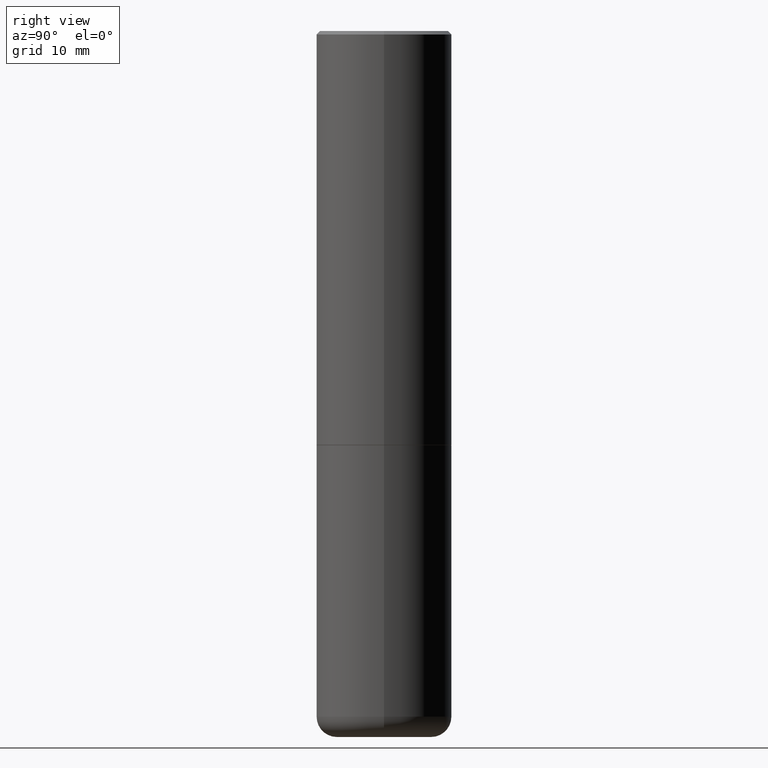
[diagram: clean part render]
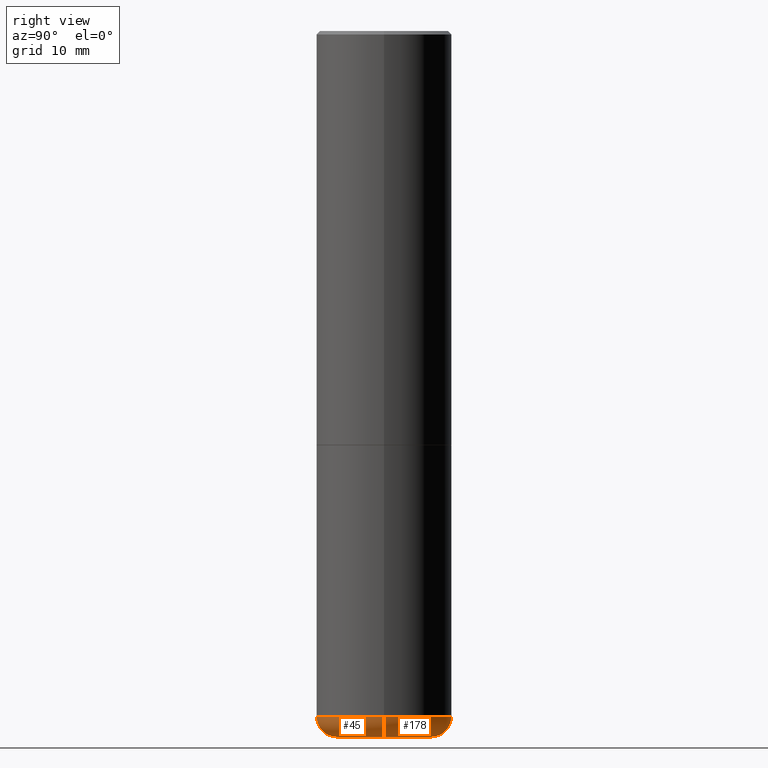
[diagram: same view with one multi-face feature highlighted, each face labeled with its STEP entity id]
A machine part, right view. The highlighted faces form ONE feature: a constant-radius fillet chain: 2 tangent blend faces with common blend radius 2.9997 mm. The faces share edges in the B-rep.
Their STEP definitions:
[1] entity #178 (Torus):
#9 = ORIENTED_EDGE ( 'NONE', *, *, #159, .F. ) ;
#28 = ORIENTED_EDGE ( 'NONE', *, *, #130, .T. ) ;
#40 = DIRECTION ( 'NONE',  ( -2.445468806185136597E-29, 3.491481338843145583E-15, 1.000000000000000000 ) ) ;
#44 = CARTESIAN_POINT ( 'NONE',  ( -0.2756000000000000116, -1.192527061602104919E-14, -3.976400000000000379 ) ) ;
#78 = FACE_OUTER_BOUND ( 'NONE', #345, .T. ) ;
#82 = VERTEX_POINT ( 'NONE', #390 ) ;
#90 = ORIENTED_EDGE ( 'NONE', *, *, #119, .F. ) ;
#92 = DIRECTION ( 'NONE',  ( -2.445468806185136597E-29, 3.491481338843145583E-15, 1.000000000000000000 ) ) ;
#117 = AXIS2_PLACEMENT_3D ( 'NONE', #330, #267, #143 ) ;
#119 = EDGE_CURVE ( 'NONE', #315, #274, #176, .T. ) ;
#120 = VERTEX_POINT ( 'NONE', #133 ) ;
#130 = EDGE_CURVE ( 'NONE', #82, #120, #350, .T. ) ;
#133 = CARTESIAN_POINT ( 'NONE',  ( -0.2756000000000000116, -1.171186710361339913E-14, -4.094500000000000028 ) ) ;
#143 = DIRECTION ( 'NONE',  ( 1.000000000000000000, -6.982962677686273021E-15, 0.000000000000000000 ) ) ;
#159 = EDGE_CURVE ( 'NONE', #82, #315, #184, .T. ) ;
#162 = TOROIDAL_SURFACE ( 'NONE', #212, 0.2756000000000000116, 0.1180999999999997468 ) ;
#176 = CIRCLE ( 'NONE', #245, 0.3937000000000000499 ) ;
#178 = ADVANCED_FACE ( 'NONE', ( #78 ), #162, .T. ) ;
#180 = DIRECTION ( 'NONE',  ( 7.105427357601001859E-15, 1.000000000000000000, -3.491481338843145583E-15 ) ) ;
#184 = CIRCLE ( 'NONE', #117, 0.1180999999999997191 ) ;
#212 = AXIS2_PLACEMENT_3D ( 'NONE', #214, #40, #334 ) ;
#214 = CARTESIAN_POINT ( 'NONE',  ( 9.724162160914577144E-29, -1.388352639577588421E-14, -3.976400000000000379 ) ) ;
#223 = AXIS2_PLACEMENT_3D ( 'NONE', #329, #92, #374 ) ;
#235 = CARTESIAN_POINT ( 'NONE',  ( 9.724162160914577144E-29, -1.388352639577588421E-14, -3.976400000000000379 ) ) ;
#245 = AXIS2_PLACEMENT_3D ( 'NONE', #235, #393, #366 ) ;
#266 = EDGE_CURVE ( 'NONE', #120, #274, #409, .T. ) ;
#267 = DIRECTION ( 'NONE',  ( -6.982962677686266711E-15, -1.000000000000000000, 3.491481338843145583E-15 ) ) ;
#274 = VERTEX_POINT ( 'NONE', #401 ) ;
#301 = DIRECTION ( 'NONE',  ( -1.000000000000000000, 7.105427357601005014E-15, 0.000000000000000000 ) ) ;
#306 = AXIS2_PLACEMENT_3D ( 'NONE', #44, #180, #301 ) ;
#315 = VERTEX_POINT ( 'NONE', #346 ) ;
#329 = CARTESIAN_POINT ( 'NONE',  ( 1.001297202692504102E-28, -1.429587034189325834E-14, -4.094500000000000028 ) ) ;
#330 = CARTESIAN_POINT ( 'NONE',  ( 0.2756000000000000116, -1.580803090974622074E-14, -3.976400000000000379 ) ) ;
#334 = DIRECTION ( 'NONE',  ( 1.000000000000000000, -6.982962677686268288E-15, 4.883557194083112901E-29 ) ) ;
#345 = EDGE_LOOP ( 'NONE', ( #28, #349, #90, #9 ) ) ;
#346 = CARTESIAN_POINT ( 'NONE',  ( 0.3936999999999998834, -1.663271880198096585E-14, -3.976400000000000379 ) ) ;
#349 = ORIENTED_EDGE ( 'NONE', *, *, #266, .T. ) ;
#350 = CIRCLE ( 'NONE', #223, 0.2756000000000000116 ) ;
#366 = DIRECTION ( 'NONE',  ( 1.000000000000000000, -6.982962677686267499E-15, 0.000000000000000000 ) ) ;
#374 = DIRECTION ( 'NONE',  ( 1.000000000000000000, -6.982962677686265922E-15, 0.000000000000000000 ) ) ;
#390 = CARTESIAN_POINT ( 'NONE',  ( 0.2756000000000000116, -1.622037485586359329E-14, -4.094500000000000028 ) ) ;
#393 = DIRECTION ( 'NONE',  ( -2.445468806185136597E-29, 3.491481338843145583E-15, 1.000000000000000000 ) ) ;
#401 = CARTESIAN_POINT ( 'NONE',  ( -0.3936999999999998834, -1.108611964508837021E-14, -3.976400000000000379 ) ) ;
#409 = CIRCLE ( 'NONE', #306, 0.1180999999999997191 ) ;
[2] entity #45 (Torus):
#1 = DIRECTION ( 'NONE',  ( 1.000000000000000000, -6.982962677686268288E-15, 4.883557194083112901E-29 ) ) ;
#20 = DIRECTION ( 'NONE',  ( 1.000000000000000000, -6.982962677686267499E-15, 0.000000000000000000 ) ) ;
#25 = AXIS2_PLACEMENT_3D ( 'NONE', #125, #410, #20 ) ;
#39 = CARTESIAN_POINT ( 'NONE',  ( 9.724162160914577144E-29, -1.388352639577588421E-14, -3.976400000000000379 ) ) ;
#44 = CARTESIAN_POINT ( 'NONE',  ( -0.2756000000000000116, -1.192527061602104919E-14, -3.976400000000000379 ) ) ;
#45 = ADVANCED_FACE ( 'NONE', ( #208 ), #206, .T. ) ;
#47 = ORIENTED_EDGE ( 'NONE', *, *, #107, .T. ) ;
#55 = ORIENTED_EDGE ( 'NONE', *, *, #302, .F. ) ;
#66 = CARTESIAN_POINT ( 'NONE',  ( 1.001297202692504102E-28, -1.429587034189325834E-14, -4.094500000000000028 ) ) ;
#79 = AXIS2_PLACEMENT_3D ( 'NONE', #39, #203, #1 ) ;
#82 = VERTEX_POINT ( 'NONE', #390 ) ;
#107 = EDGE_CURVE ( 'NONE', #120, #82, #332, .T. ) ;
#117 = AXIS2_PLACEMENT_3D ( 'NONE', #330, #267, #143 ) ;
#120 = VERTEX_POINT ( 'NONE', #133 ) ;
#124 = ORIENTED_EDGE ( 'NONE', *, *, #266, .F. ) ;
#125 = CARTESIAN_POINT ( 'NONE',  ( 9.724162160914577144E-29, -1.388352639577588421E-14, -3.976400000000000379 ) ) ;
#133 = CARTESIAN_POINT ( 'NONE',  ( -0.2756000000000000116, -1.171186710361339913E-14, -4.094500000000000028 ) ) ;
#143 = DIRECTION ( 'NONE',  ( 1.000000000000000000, -6.982962677686273021E-15, 0.000000000000000000 ) ) ;
#147 = CIRCLE ( 'NONE', #25, 0.3937000000000000499 ) ;
#159 = EDGE_CURVE ( 'NONE', #82, #315, #184, .T. ) ;
#180 = DIRECTION ( 'NONE',  ( 7.105427357601001859E-15, 1.000000000000000000, -3.491481338843145583E-15 ) ) ;
#184 = CIRCLE ( 'NONE', #117, 0.1180999999999997191 ) ;
#203 = DIRECTION ( 'NONE',  ( -2.445468806185136597E-29, 3.491481338843145583E-15, 1.000000000000000000 ) ) ;
#206 = TOROIDAL_SURFACE ( 'NONE', #79, 0.2756000000000000116, 0.1180999999999997468 ) ;
#208 = FACE_OUTER_BOUND ( 'NONE', #347, .T. ) ;
#258 = DIRECTION ( 'NONE',  ( 1.000000000000000000, -6.982962677686265922E-15, 0.000000000000000000 ) ) ;
#266 = EDGE_CURVE ( 'NONE', #120, #274, #409, .T. ) ;
#267 = DIRECTION ( 'NONE',  ( -6.982962677686266711E-15, -1.000000000000000000, 3.491481338843145583E-15 ) ) ;
#274 = VERTEX_POINT ( 'NONE', #401 ) ;
#280 = AXIS2_PLACEMENT_3D ( 'NONE', #66, #326, #258 ) ;
#301 = DIRECTION ( 'NONE',  ( -1.000000000000000000, 7.105427357601005014E-15, 0.000000000000000000 ) ) ;
#302 = EDGE_CURVE ( 'NONE', #274, #315, #147, .T. ) ;
#306 = AXIS2_PLACEMENT_3D ( 'NONE', #44, #180, #301 ) ;
#311 = ORIENTED_EDGE ( 'NONE', *, *, #159, .T. ) ;
#315 = VERTEX_POINT ( 'NONE', #346 ) ;
#326 = DIRECTION ( 'NONE',  ( -2.445468806185136597E-29, 3.491481338843145583E-15, 1.000000000000000000 ) ) ;
#330 = CARTESIAN_POINT ( 'NONE',  ( 0.2756000000000000116, -1.580803090974622074E-14, -3.976400000000000379 ) ) ;
#332 = CIRCLE ( 'NONE', #280, 0.2756000000000000116 ) ;
#346 = CARTESIAN_POINT ( 'NONE',  ( 0.3936999999999998834, -1.663271880198096585E-14, -3.976400000000000379 ) ) ;
#347 = EDGE_LOOP ( 'NONE', ( #124, #47, #311, #55 ) ) ;
#390 = CARTESIAN_POINT ( 'NONE',  ( 0.2756000000000000116, -1.622037485586359329E-14, -4.094500000000000028 ) ) ;
#401 = CARTESIAN_POINT ( 'NONE',  ( -0.3936999999999998834, -1.108611964508837021E-14, -3.976400000000000379 ) ) ;
#409 = CIRCLE ( 'NONE', #306, 0.1180999999999997191 ) ;
#410 = DIRECTION ( 'NONE',  ( -2.445468806185136597E-29, 3.491481338843145583E-15, 1.000000000000000000 ) ) ;